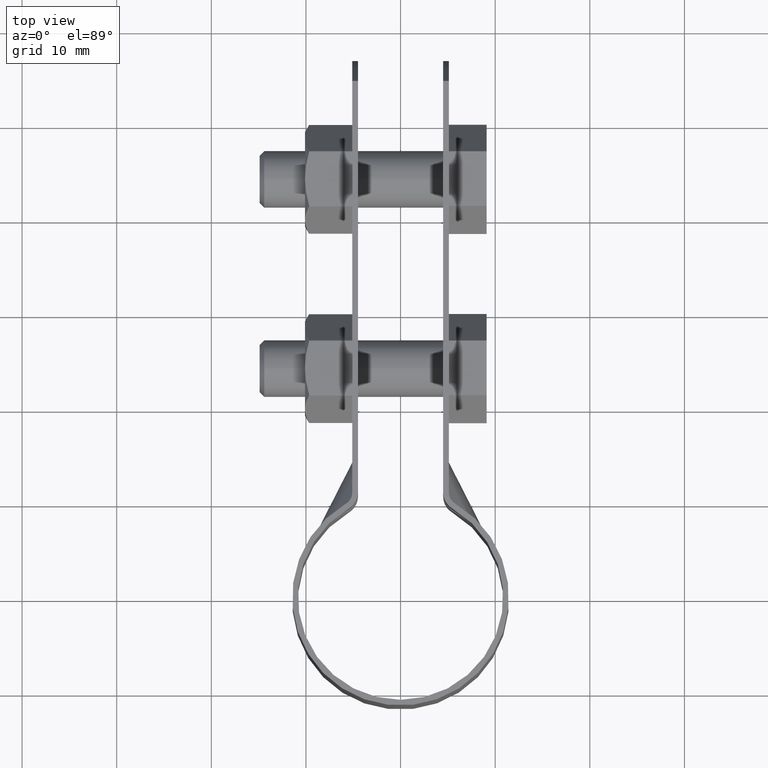
[diagram: clean part render]
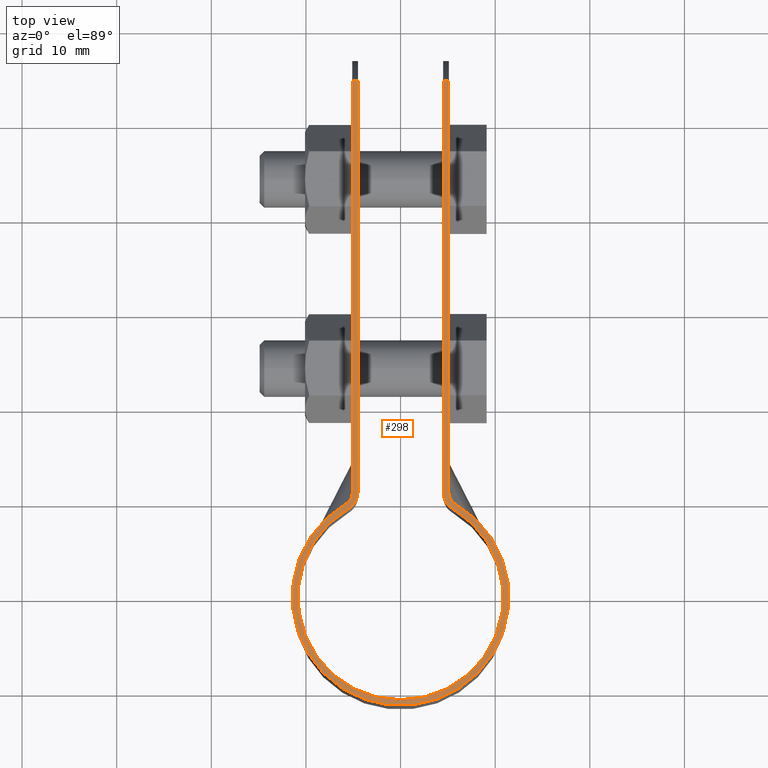
[diagram: same view with one face highlighted and labeled with its STEP entity id]
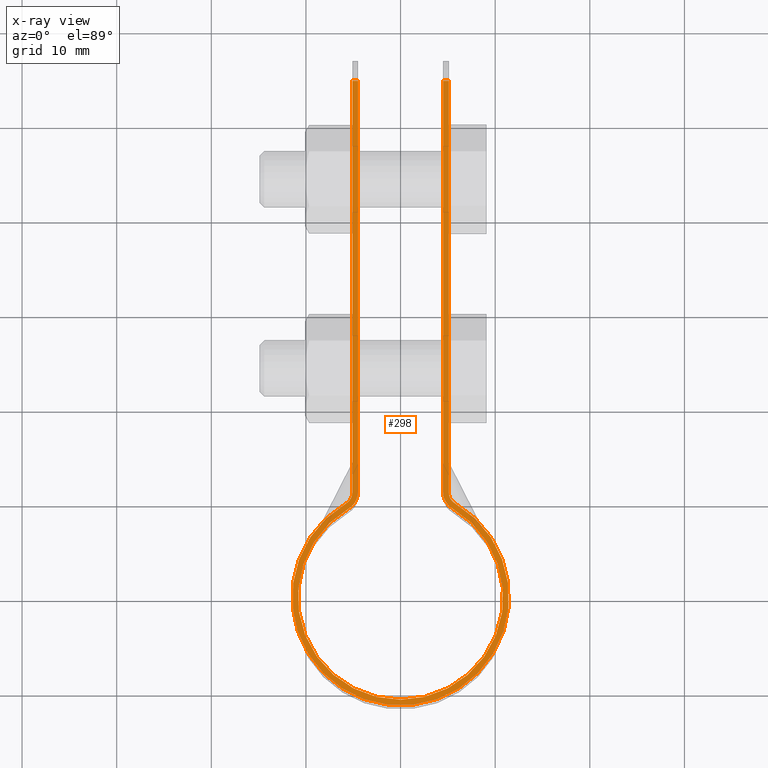
[diagram: x-ray of the same camera — body ghosted, the highlighted face saturated]
A machine part, top view. The second image highlights one B-rep face of the part: STEP entity #298.
The next image is the same camera in x-ray: the body ghosted, the highlighted face saturated — about 0% of this face is hidden behind the body in this view.
In plain terms, the highlighted planar face has unit normal (0, 0, -1).
Its self-contained STEP definition (entity closure, byte-faithful):
#298 = ADVANCED_FACE( '', ( #444 ), #445, .F. );
#444 = FACE_OUTER_BOUND( '', #676, .T. );
#445 = PLANE( '', #677 );
#676 = EDGE_LOOP( '', ( #1091, #1092, #1093, #1094, #1095, #1096, #1097, #1098, #1099, #1100, #1101, #1102 ) );
#677 = AXIS2_PLACEMENT_3D( '', #1103, #1104, #1105 );
#1091 = ORIENTED_EDGE( '', *, *, #1682, .F. );
#1092 = ORIENTED_EDGE( '', *, *, #1688, .T. );
#1093 = ORIENTED_EDGE( '', *, *, #1696, .T. );
#1094 = ORIENTED_EDGE( '', *, *, #1636, .T. );
#1095 = ORIENTED_EDGE( '', *, *, #1633, .T. );
#1096 = ORIENTED_EDGE( '', *, *, #1693, .T. );
#1097 = ORIENTED_EDGE( '', *, *, #1684, .F. );
#1098 = ORIENTED_EDGE( '', *, *, #1695, .F. );
#1099 = ORIENTED_EDGE( '', *, *, #1698, .F. );
#1100 = ORIENTED_EDGE( '', *, *, #1701, .F. );
#1101 = ORIENTED_EDGE( '', *, *, #1706, .F. );
#1102 = ORIENTED_EDGE( '', *, *, #1703, .F. );
#1103 = CARTESIAN_POINT( '', ( -4.50000000000000, 56.8728162142319, 12.5000000000000 ) );
#1104 = DIRECTION( '', ( 0.000000000000000, 0.000000000000000, -1.00000000000000 ) );
#1105 = DIRECTION( '', ( -6.06692130572647E-017, -1.00000000000000, 0.000000000000000 ) );
#1633 = EDGE_CURVE( '', #1888, #1886, #1889, .F. );
#1636 = EDGE_CURVE( '', #1893, #1888, #1894, .T. );
#1682 = EDGE_CURVE( '', #1972, #1974, #1975, .T. );
#1684 = EDGE_CURVE( '', #1977, #1978, #1979, .T. );
#1688 = EDGE_CURVE( '', #1972, #1982, #1984, .T. );
#1693 = EDGE_CURVE( '', #1886, #1978, #1991, .T. );
#1695 = EDGE_CURVE( '', #1992, #1977, #1994, .T. );
#1696 = EDGE_CURVE( '', #1982, #1893, #1995, .F. );
#1698 = EDGE_CURVE( '', #1996, #1992, #1998, .T. );
#1701 = EDGE_CURVE( '', #2000, #1996, #2002, .T. );
#1703 = EDGE_CURVE( '', #1974, #2004, #2005, .T. );
#1706 = EDGE_CURVE( '', #2004, #2000, #2008, .T. );
#1886 = VERTEX_POINT( '', #2294 );
#1888 = VERTEX_POINT( '', #2297 );
#1889 = CIRCLE( '', #2298, 1.40000000000000 );
#1893 = VERTEX_POINT( '', #2303 );
#1894 = CIRCLE( '', #2304, 11.4500000000000 );
#1972 = VERTEX_POINT( '', #2491 );
#1974 = VERTEX_POINT( '', #2493 );
#1975 = LINE( '', #2494, #2495 );
#1977 = VERTEX_POINT( '', #2497 );
#1978 = VERTEX_POINT( '', #2498 );
#1979 = LINE( '', #2499, #2500 );
#1982 = VERTEX_POINT( '', #2503 );
#1984 = LINE( '', #2506, #2507 );
#1991 = LINE( '', #2517, #2518 );
#1992 = VERTEX_POINT( '', #2519 );
#1994 = LINE( '', #2522, #2523 );
#1995 = CIRCLE( '', #2524, 1.40000000000000 );
#1996 = VERTEX_POINT( '', #2525 );
#1998 = CIRCLE( '', #2528, 2.00000000000000 );
#2000 = VERTEX_POINT( '', #2531 );
#2002 = CIRCLE( '', #2534, 10.8500000000000 );
#2004 = VERTEX_POINT( '', #2537 );
#2005 = LINE( '', #2538, #2539 );
#2008 = CIRCLE( '', #2543, 2.00000000000000 );
#2294 = CARTESIAN_POINT( '', ( 5.10000000000000, 11.0847868721054, 12.5000000000000 ) );
#2297 = CARTESIAN_POINT( '', ( 5.79182879377431, 9.87710581210948, 12.5000000000000 ) );
#2298 = AXIS2_PLACEMENT_3D( '', #3015, #3016, #3017 );
#2303 = CARTESIAN_POINT( '', ( -5.79182879377431, 9.87710581210946, 12.5000000000000 ) );
#2304 = AXIS2_PLACEMENT_3D( '', #3022, #3023, #3024 );
#2491 = CARTESIAN_POINT( '', ( -5.10000000000000, 54.5645582907869, 12.5000000000000 ) );
#2493 = CARTESIAN_POINT( '', ( -4.50000000000000, 54.5645582907869, 12.5000000000000 ) );
#2494 = CARTESIAN_POINT( '', ( -58.5538197479233, 54.5645582907869, 12.5000000000000 ) );
#2495 = VECTOR( '', #3114, 1000.00000000000 );
#2497 = CARTESIAN_POINT( '', ( 4.50000000000000, 54.5645582907869, 12.5000000000000 ) );
#2498 = CARTESIAN_POINT( '', ( 5.10000000000000, 54.5645582907869, 12.5000000000000 ) );
#2499 = CARTESIAN_POINT( '', ( -58.5538197479233, 54.5645582907869, 12.5000000000000 ) );
#2500 = VECTOR( '', #3118, 1000.00000000000 );
#2503 = CARTESIAN_POINT( '', ( -5.10000000000000, 11.0847868721054, 12.5000000000000 ) );
#2506 = CARTESIAN_POINT( '', ( -5.10000000000000, 56.8728162142319, 12.5000000000000 ) );
#2507 = VECTOR( '', #3126, 1000.00000000000 );
#2517 = CARTESIAN_POINT( '', ( 5.10000000000000, 11.0847868721054, 12.5000000000000 ) );
#2518 = VECTOR( '', #3133, 1000.00000000000 );
#2519 = CARTESIAN_POINT( '', ( 4.50000000000000, 11.0847868721054, 12.5000000000000 ) );
#2522 = CARTESIAN_POINT( '', ( 4.50000000000000, 11.0847868721054, 12.5000000000000 ) );
#2523 = VECTOR( '', #3135, 1000.00000000000 );
#2524 = AXIS2_PLACEMENT_3D( '', #3136, #3137, #3138 );
#2525 = CARTESIAN_POINT( '', ( 5.48832684824902, 9.35952821496837, 12.5000000000000 ) );
#2528 = AXIS2_PLACEMENT_3D( '', #3140, #3141, #3142 );
#2531 = CARTESIAN_POINT( '', ( -5.48832684824902, 9.35952821496836, 12.5000000000000 ) );
#2534 = AXIS2_PLACEMENT_3D( '', #3145, #3146, #3147 );
#2537 = CARTESIAN_POINT( '', ( -4.50000000000000, 11.0847868721054, 12.5000000000000 ) );
#2538 = CARTESIAN_POINT( '', ( -4.50000000000000, 56.8728162142319, 12.5000000000000 ) );
#2539 = VECTOR( '', #3149, 1000.00000000000 );
#2543 = AXIS2_PLACEMENT_3D( '', #3154, #3155, #3156 );
#3015 = CARTESIAN_POINT( '', ( 6.50000000000000, 11.0847868721054, 12.5000000000000 ) );
#3016 = DIRECTION( '', ( 0.000000000000000, 0.000000000000000, 1.00000000000000 ) );
#3017 = DIRECTION( '', ( 1.00000000000000, 0.000000000000000, 0.000000000000000 ) );
#3022 = CARTESIAN_POINT( '', ( 0.000000000000000, 0.000000000000000, 12.5000000000000 ) );
#3023 = DIRECTION( '', ( 0.000000000000000, 0.000000000000000, 1.00000000000000 ) );
#3024 = DIRECTION( '', ( 1.00000000000000, 0.000000000000000, 0.000000000000000 ) );
#3114 = DIRECTION( '', ( 1.00000000000000, -6.06692130572647E-017, 0.000000000000000 ) );
#3118 = DIRECTION( '', ( 1.00000000000000, -6.06692130572647E-017, 0.000000000000000 ) );
#3126 = DIRECTION( '', ( -6.06692130572647E-017, -1.00000000000000, 0.000000000000000 ) );
#3133 = DIRECTION( '', ( 6.06692130572647E-017, 1.00000000000000, 0.000000000000000 ) );
#3135 = DIRECTION( '', ( 6.06692130572647E-017, 1.00000000000000, 0.000000000000000 ) );
#3136 = CARTESIAN_POINT( '', ( -6.50000000000000, 11.0847868721054, 12.5000000000000 ) );
#3137 = DIRECTION( '', ( 0.000000000000000, 0.000000000000000, 1.00000000000000 ) );
#3138 = DIRECTION( '', ( 1.00000000000000, 0.000000000000000, 0.000000000000000 ) );
#3140 = CARTESIAN_POINT( '', ( 6.50000000000000, 11.0847868721054, 12.5000000000000 ) );
#3141 = DIRECTION( '', ( 0.000000000000000, 0.000000000000000, -1.00000000000000 ) );
#3142 = DIRECTION( '', ( -1.00000000000000, 6.06692130572647E-017, 0.000000000000000 ) );
#3145 = CARTESIAN_POINT( '', ( 0.000000000000000, 0.000000000000000, 12.5000000000000 ) );
#3146 = DIRECTION( '', ( 0.000000000000000, 0.000000000000000, 1.00000000000000 ) );
#3147 = DIRECTION( '', ( 1.00000000000000, -6.06692130572647E-017, 0.000000000000000 ) );
#3149 = DIRECTION( '', ( -6.06692130572647E-017, -1.00000000000000, 0.000000000000000 ) );
#3154 = CARTESIAN_POINT( '', ( -6.50000000000000, 11.0847868721054, 12.5000000000000 ) );
#3155 = DIRECTION( '', ( 0.000000000000000, 0.000000000000000, -1.00000000000000 ) );
#3156 = DIRECTION( '', ( 1.00000000000000, -6.06692130572647E-017, 0.000000000000000 ) );